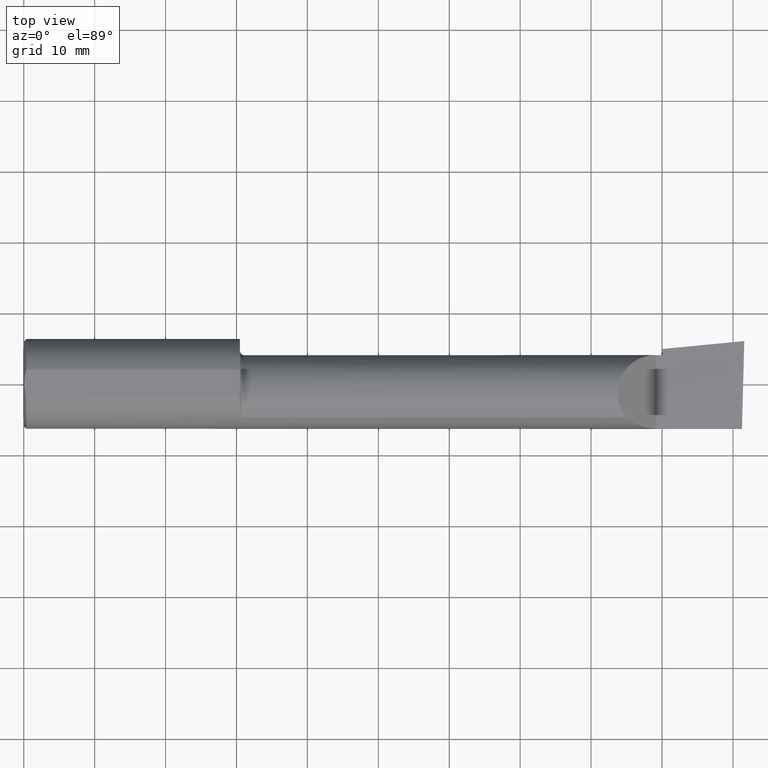
[diagram: clean part render]
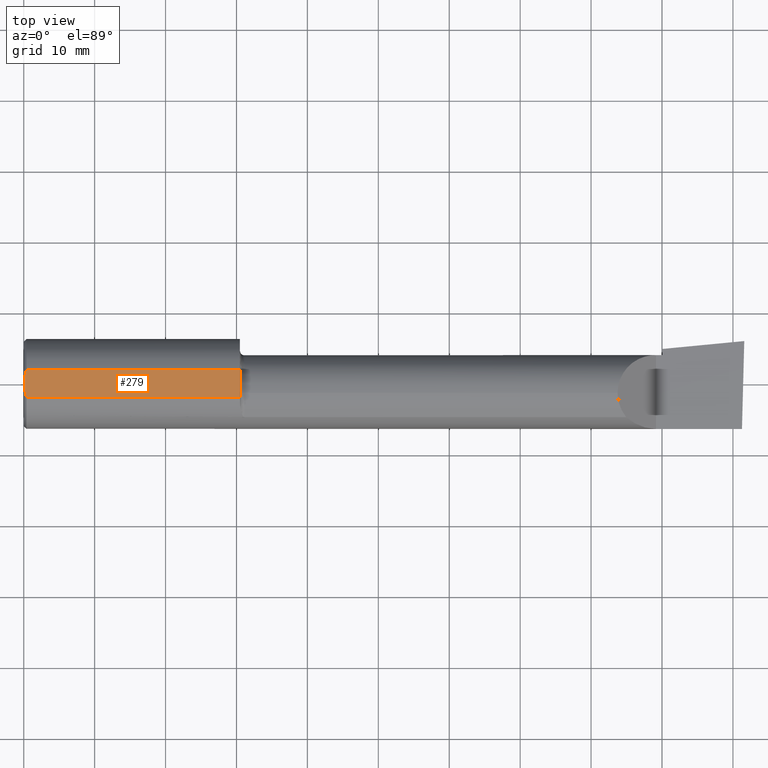
[diagram: same view with one face highlighted and labeled with its STEP entity id]
A machine part, top view. The second image highlights one B-rep face of the part: STEP entity #279.
In plain terms, the highlighted planar face has unit normal (0, -0, -1).
Its self-contained STEP definition (entity closure, byte-faithful):
#3 = CARTESIAN_POINT ( 'NONE',  ( 1.200000000000000400, -0.04105010460297373043, 0.2378500000000000059 ) ) ;
#8 = CARTESIAN_POINT ( 'NONE',  ( 1.200001800035618293, -0.04901601311796578014, 0.2378500024320483464 ) ) ;
#17 = VERTEX_POINT ( 'NONE', #128 ) ;
#43 = DIRECTION ( 'NONE',  ( 0.0000000000000000000, -1.138839417068643993E-16, -1.000000000000000000 ) ) ;
#50 = ORIENTED_EDGE ( 'NONE', *, *, #700, .F. ) ;
#54 = B_SPLINE_CURVE_WITH_KNOTS ( 'NONE', 3,
 ( #388, #334, #611, #668, #204, #89 ),
 .UNSPECIFIED., .F., .F.,
 ( 4, 2, 4 ),
 ( 0.002692677063605041030, 0.003672889278957893171, 0.004653101494310745746 ),
 .UNSPECIFIED. ) ;
#57 = CARTESIAN_POINT ( 'NONE',  ( 1.200000900032402340, -0.05299999999999998462, 0.2378500000000221548 ) ) ;
#63 = VERTEX_POINT ( 'NONE', #519 ) ;
#64 = DIRECTION ( 'NONE',  ( 0.0000000000000000000, -1.000000000000000000, 1.138839417068643993E-16 ) ) ;
#83 = CARTESIAN_POINT ( 'NONE',  ( 1.200001800093990489, -0.05698398688203856061, 0.2378499975680403167 ) ) ;
#89 = CARTESIAN_POINT ( 'NONE',  ( 0.003000000000000035624, 4.000210840755228160E-17, 0.2378500000000000059 ) ) ;
#118 = CARTESIAN_POINT ( 'NONE',  ( 0.003000000000000035624, 4.000210840755228160E-17, 0.2378500000000000059 ) ) ;
#128 = CARTESIAN_POINT ( 'NONE',  ( 1.200000000000000400, -0.04105010460297373043, 0.2378500000000000059 ) ) ;
#150 = DIRECTION ( 'NONE',  ( 1.000000000000000000, 0.0000000000000000000, 0.0000000000000000000 ) ) ;
#172 = CARTESIAN_POINT ( 'NONE',  ( 4.000000000000000000, 0.2998500000000000609, 0.2378499999999999504 ) ) ;
#201 = VERTEX_POINT ( 'NONE', #556 ) ;
#204 = CARTESIAN_POINT ( 'NONE',  ( 0.003000000000000061645, -0.01298133447204029636, 0.2378500000000000059 ) ) ;
#233 = B_SPLINE_CURVE_WITH_KNOTS ( 'NONE', 3,
 ( #118, #393, #327, #284, #434, #449 ),
 .UNSPECIFIED., .F., .F.,
 ( 4, 2, 4 ),
 ( 0.004653101494310745746, 0.005634627094920350784, 0.006616152695529954955 ),
 .UNSPECIFIED. ) ;
#243 = ORIENTED_EDGE ( 'NONE', *, *, #424, .F. ) ;
#246 = CARTESIAN_POINT ( 'NONE',  ( 1.200000000000000400, -0.04503596074371477020, 0.2378500000000000059 ) ) ;
#254 = FACE_OUTER_BOUND ( 'NONE', #470, .T. ) ;
#263 = CARTESIAN_POINT ( 'NONE',  ( 1.200000000000000400, -0.06494989539702619719, 0.2378500000000000059 ) ) ;
#273 = VERTEX_POINT ( 'NONE', #455 ) ;
#279 = ADVANCED_FACE ( 'NONE', ( #254 ), #642, .F. ) ;
#284 = CARTESIAN_POINT ( 'NONE',  ( 0.008199648822848975074, 0.05156445313451100965, 0.2378500000000000059 ) ) ;
#306 = VECTOR ( 'NONE', #385, 39.37007874015748143 ) ;
#309 = CARTESIAN_POINT ( 'NONE',  ( 1.200000000000000400, 0.07650098038587482829, 0.2378500000000000059 ) ) ;
#311 = EDGE_CURVE ( 'NONE', #541, #17, #356, .T. ) ;
#320 = ORIENTED_EDGE ( 'NONE', *, *, #533, .F. ) ;
#324 = CARTESIAN_POINT ( 'NONE',  ( 1.200000000000000400, -0.06494989539702619719, 0.2378500000000000059 ) ) ;
#327 = CARTESIAN_POINT ( 'NONE',  ( 0.004092330037930639458, 0.02606142970188499164, 0.2378500000000000059 ) ) ;
#334 = CARTESIAN_POINT ( 'NONE',  ( 0.01120982745448978989, -0.06412238594540857484, 0.2378500000000000336 ) ) ;
#340 = VERTEX_POINT ( 'NONE', #57 ) ;
#347 = CARTESIAN_POINT ( 'NONE',  ( 1.200000000000000400, 0.2998500000000000609, 0.2378499999999999504 ) ) ;
#356 = LINE ( 'NONE', #347, #648 ) ;
#385 = DIRECTION ( 'NONE',  ( -1.000000000000000000, -0.0000000000000000000, -0.0000000000000000000 ) ) ;
#388 = CARTESIAN_POINT ( 'NONE',  ( 0.01499999999998191669, -0.07650098038590480432, 0.2378500000000000059 ) ) ;
#393 = CARTESIAN_POINT ( 'NONE',  ( 0.003000000000000062946, 0.01299872814765622858, 0.2378499999999999226 ) ) ;
#398 = DIRECTION ( 'NONE',  ( 0.0000000000000000000, 1.000000000000000000, -1.138839417068643993E-16 ) ) ;
#399 = EDGE_CURVE ( 'NONE', #201, #585, #233, .T. ) ;
#402 = B_SPLINE_CURVE_WITH_KNOTS ( 'NONE', 3,
 ( #552, #83, #612, #263 ),
 .UNSPECIFIED., .F., .F.,
 ( 4, 4 ),
 ( 0.4999999999997267186, 1.000000000000000000 ),
 .UNSPECIFIED. ) ;
#408 = ORIENTED_EDGE ( 'NONE', *, *, #311, .F. ) ;
#424 = EDGE_CURVE ( 'NONE', #273, #201, #54, .T. ) ;
#426 = LINE ( 'NONE', #459, #306 ) ;
#434 = CARTESIAN_POINT ( 'NONE',  ( 0.01120763235350239959, 0.06411521680875344187, 0.2378500000000000336 ) ) ;
#436 = EDGE_CURVE ( 'NONE', #63, #273, #426, .T. ) ;
#438 = ORIENTED_EDGE ( 'NONE', *, *, #436, .F. ) ;
#449 = CARTESIAN_POINT ( 'NONE',  ( 0.01499999999999999771, 0.07650098038587481442, 0.2378500000000000059 ) ) ;
#455 = CARTESIAN_POINT ( 'NONE',  ( 0.01499999999998191669, -0.07650098038590480432, 0.2378500000000000059 ) ) ;
#459 = CARTESIAN_POINT ( 'NONE',  ( 0.0000000000000000000, -0.07650098038587477278, 0.2378500000000000059 ) ) ;
#467 = AXIS2_PLACEMENT_3D ( 'NONE', #172, #43, #398 ) ;
#470 = EDGE_LOOP ( 'NONE', ( #408, #703, #767, #243, #438, #528, #50, #320 ) ) ;
#519 = CARTESIAN_POINT ( 'NONE',  ( 1.200000000000000400, -0.07650098038590487370, 0.2378500000000000059 ) ) ;
#528 = ORIENTED_EDGE ( 'NONE', *, *, #583, .F. ) ;
#531 = VECTOR ( 'NONE', #660, 39.37007874015748143 ) ;
#533 = EDGE_CURVE ( 'NONE', #17, #340, #749, .T. ) ;
#538 = CARTESIAN_POINT ( 'NONE',  ( 0.01499999999999999771, 0.07650098038587481442, 0.2378500000000000059 ) ) ;
#541 = VERTEX_POINT ( 'NONE', #309 ) ;
#549 = LINE ( 'NONE', #595, #531 ) ;
#552 = CARTESIAN_POINT ( 'NONE',  ( 1.200000900032402340, -0.05299999999999998462, 0.2378500000000221548 ) ) ;
#556 = CARTESIAN_POINT ( 'NONE',  ( 0.003000000000000035624, 4.000210840755228160E-17, 0.2378500000000000059 ) ) ;
#583 = EDGE_CURVE ( 'NONE', #704, #63, #549, .T. ) ;
#585 = VERTEX_POINT ( 'NONE', #538 ) ;
#595 = CARTESIAN_POINT ( 'NONE',  ( 1.200000000000000400, 0.2998500000000000609, 0.2378499999999999504 ) ) ;
#611 = CARTESIAN_POINT ( 'NONE',  ( 0.008160184410935175658, -0.05138200716576606791, 0.2378500000000000336 ) ) ;
#612 = CARTESIAN_POINT ( 'NONE',  ( 1.200000000000000400, -0.06096394231309024830, 0.2378500000000000059 ) ) ;
#613 = LINE ( 'NONE', #623, #751 ) ;
#623 = CARTESIAN_POINT ( 'NONE',  ( 0.0000000000000000000, 0.07650098038587481442, 0.2378500000000000059 ) ) ;
#638 = CARTESIAN_POINT ( 'NONE',  ( 1.200000900032402340, -0.05299999999999998462, 0.2378500000000221548 ) ) ;
#642 = PLANE ( 'NONE',  #467 ) ;
#648 = VECTOR ( 'NONE', #64, 39.37007874015748143 ) ;
#660 = DIRECTION ( 'NONE',  ( 0.0000000000000000000, -1.000000000000000000, 1.138839417068643993E-16 ) ) ;
#668 = CARTESIAN_POINT ( 'NONE',  ( 0.004068542164723859197, -0.02585015905295368760, 0.2378499999999999226 ) ) ;
#700 = EDGE_CURVE ( 'NONE', #340, #704, #402, .T. ) ;
#703 = ORIENTED_EDGE ( 'NONE', *, *, #754, .F. ) ;
#704 = VERTEX_POINT ( 'NONE', #324 ) ;
#749 = B_SPLINE_CURVE_WITH_KNOTS ( 'NONE', 3,
 ( #3, #246, #8, #638 ),
 .UNSPECIFIED., .F., .F.,
 ( 4, 4 ),
 ( 0.0000000000000000000, 0.4999999999997267186 ),
 .UNSPECIFIED. ) ;
#751 = VECTOR ( 'NONE', #150, 39.37007874015748143 ) ;
#754 = EDGE_CURVE ( 'NONE', #585, #541, #613, .T. ) ;
#767 = ORIENTED_EDGE ( 'NONE', *, *, #399, .F. ) ;